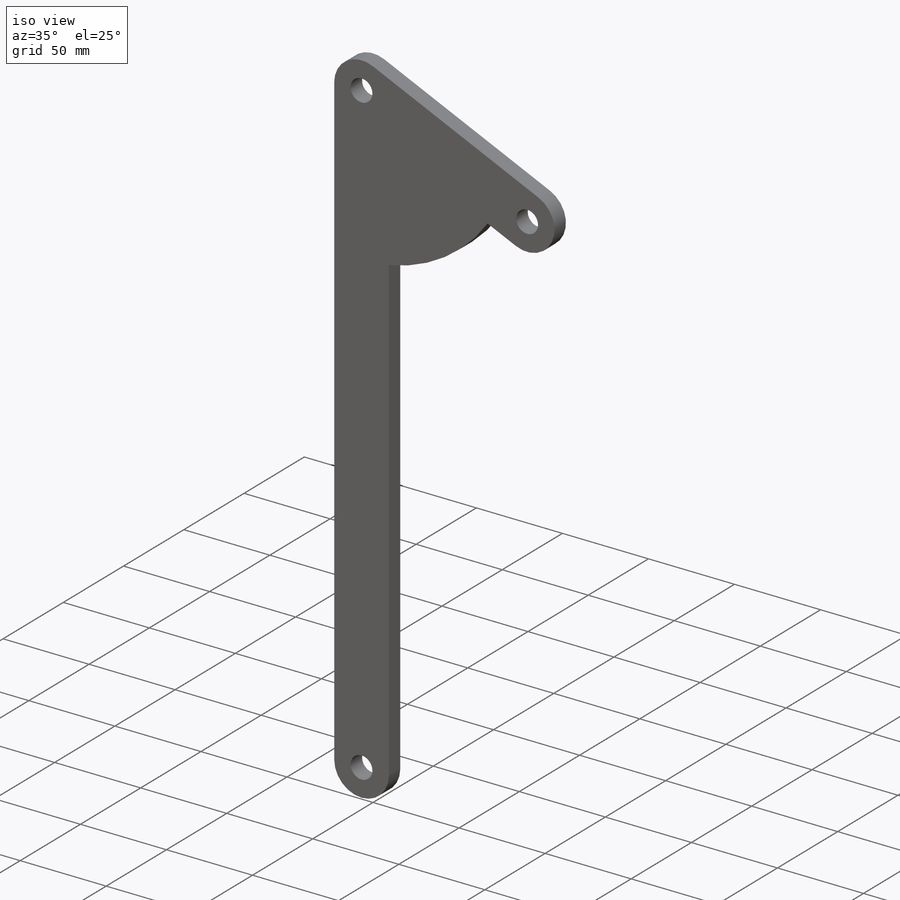
[diagram: iso view]
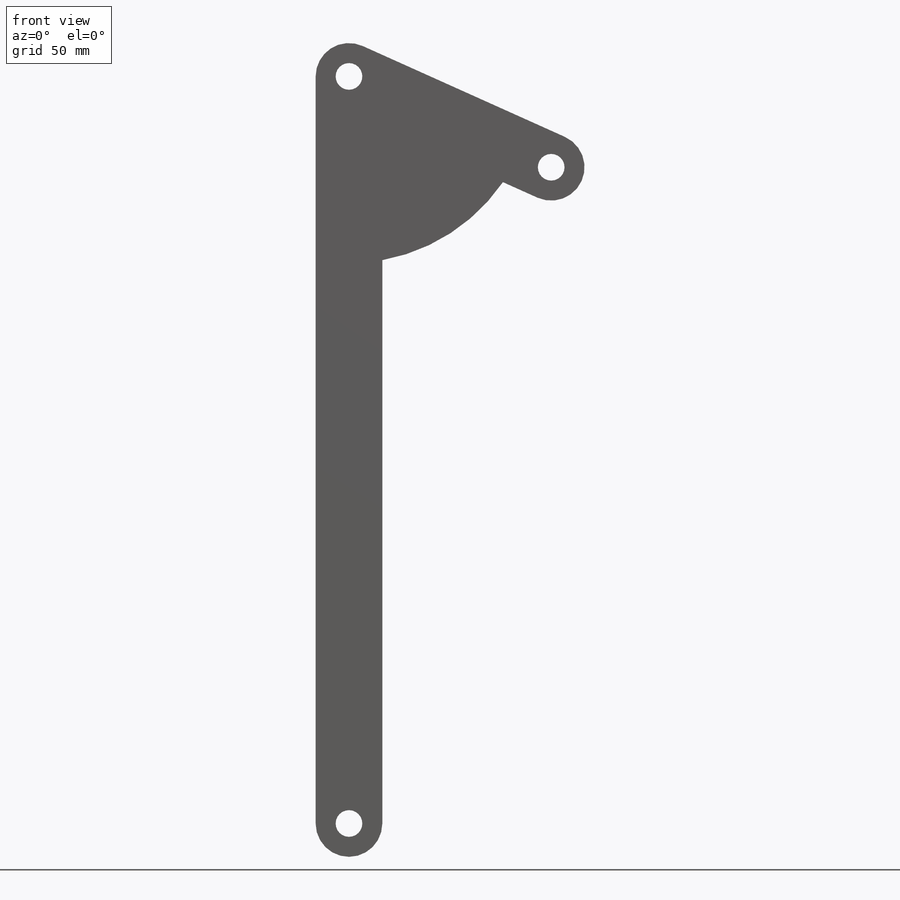
[diagram: front view]
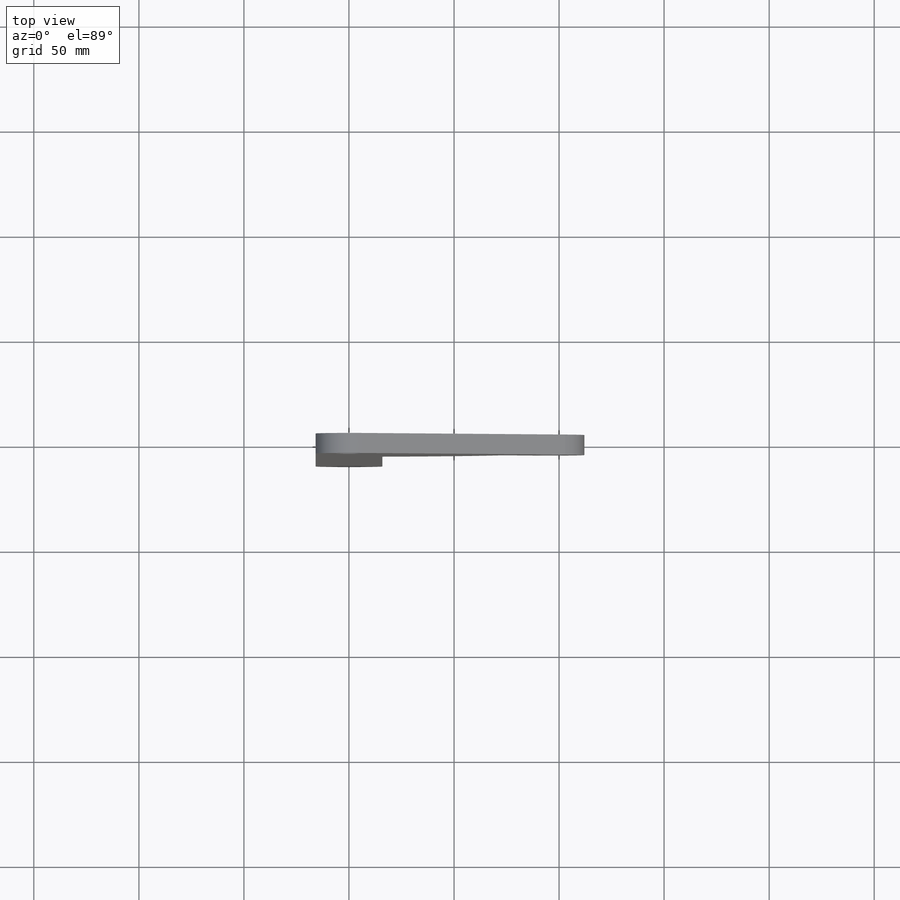
[diagram: top view]
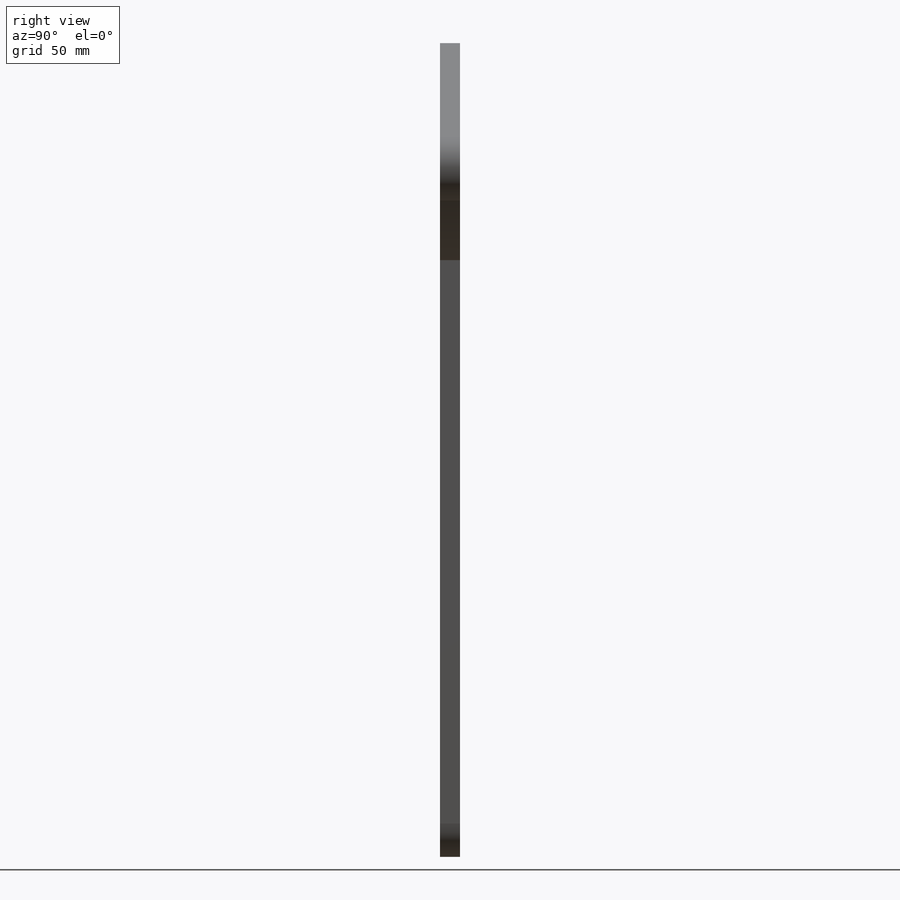
[diagram: right view]
SOLIDWORKS PART (.sldprt)
format: sldprt  version: not decoded by parser v0  size: 195,072 bytes
history: native  units: mm
features: sketch x5, hole x2, material x1, extrude x1 (+13 scaffold rows collapsed)
feature tree (22):
  scaffold x13  (default folders/planes/origin — collapsed)
  material  "6063-T83"
  sketch  "Sketch1"  dims[c1.D1=31.75mm c1.D2=31.75mm c1.D3=31.75mm c1.D7=88.9mm c1.D4=355.6mm c1.D5=~105.518712mm c1.D6=~326.848978mm c2.D7=~18.832485mm c2.D8=~268.211585mm c3.D8=~0.095928deg c4.D8=355.6mm c5.D8=~0.095928deg c6.D8=355.6mm]
  extrude  "Boss-Extrude1"  Depth=9.525mm
  hole  "1/2 (0.5) Diameter Hole1"  Diameter=12.7mm Depth=9.525mm
  sketch  "Sketch3"
  sketch  "Sketch2"  dims[hole-wizard template sketch: 61 standard entries collapsed; hole parameters above]
  hole  "1/2 (0.5) Diameter Hole2"  Diameter=12.7mm Depth=9.525mm
  sketch  "Sketch8"
  sketch  "Sketch7"  dims[hole-wizard template sketch: 61 standard entries collapsed; hole parameters above]
decode coverage: 6 of 8 modeling features carry decoded parameters
note: ~ marks probable driven/reference dimensions
note: suppression state not decoded; provenance and decode notes live in map.json
